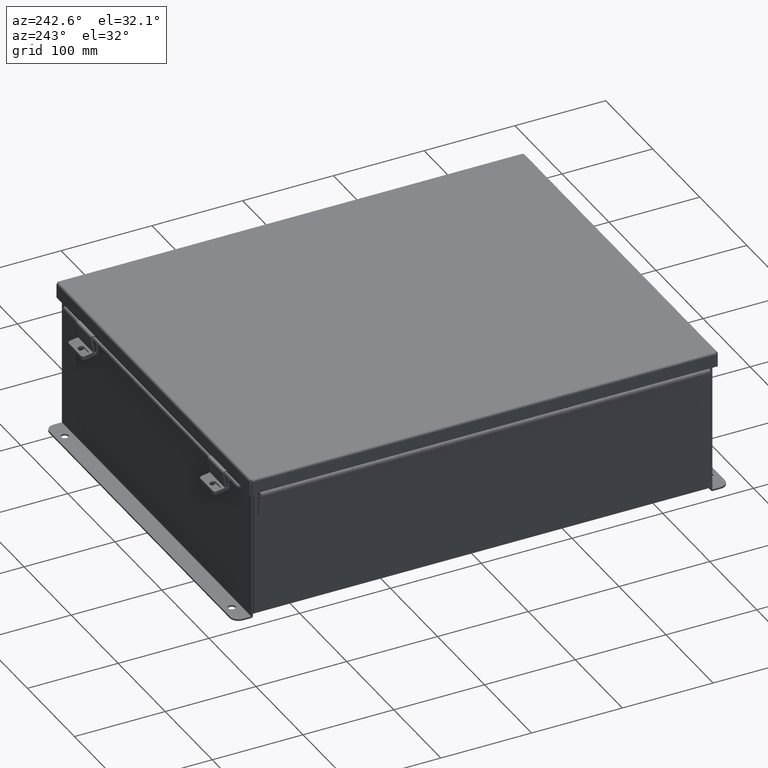
[diagram: clean part render]
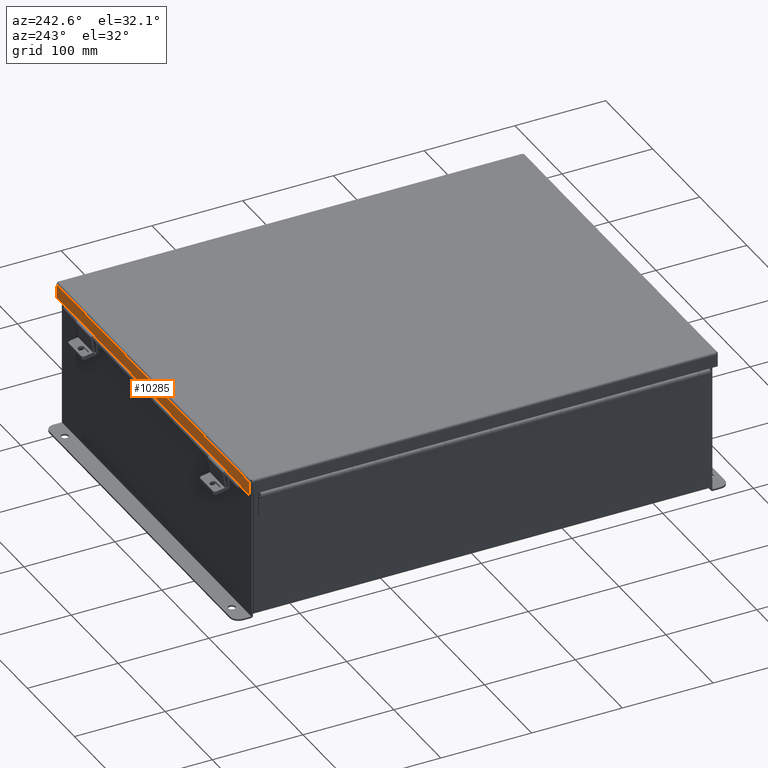
[diagram: same view with one face highlighted and labeled with its STEP entity id]
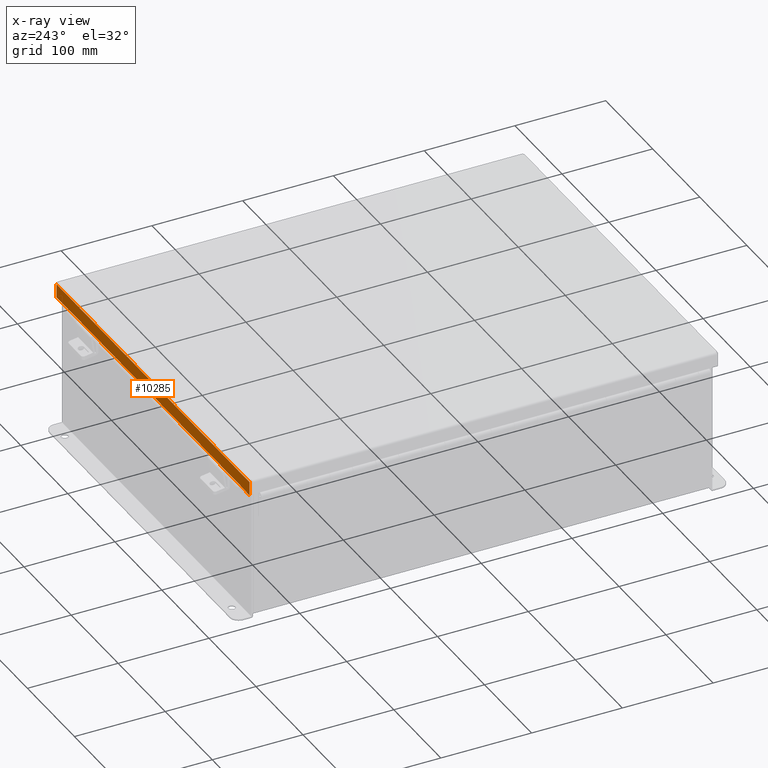
[diagram: x-ray of the same camera — body ghosted, the highlighted face saturated]
A machine part, auxiliary view. The second image highlights one B-rep face of the part: STEP entity #10285.
The next image is the same camera in x-ray: the body ghosted, the highlighted face saturated — about 0% of this face is hidden behind the body in this view.
In plain terms, the highlighted planar face has unit normal (-0, -1, -0).
Its self-contained STEP definition (entity closure, byte-faithful):
#5 = ORIENTED_EDGE ( 'NONE', *, *, #5401, .F. ) ;
#139 = ORIENTED_EDGE ( 'NONE', *, *, #2801, .T. ) ;
#688 = EDGE_CURVE ( 'NONE', #20556, #21527, #14734, .T. ) ;
#698 = DIRECTION ( 'NONE',  ( -1.000000000000000000, -3.191323508412551400E-030, -0.0000000000000000000 ) ) ;
#933 = VECTOR ( 'NONE', #9175, 39.37007874015748100 ) ;
#1218 = CARTESIAN_POINT ( 'NONE',  ( 5.335640612625514100E-018, 10.15625000000000200, 0.6122999999999994000 ) ) ;
#1349 = DIRECTION ( 'NONE',  ( 0.0000000000000000000, -3.569293475308532400E-015, -1.000000000000000000 ) ) ;
#1512 = EDGE_CURVE ( 'NONE', #8308, #2710, #5791, .T. ) ;
#2428 = CARTESIAN_POINT ( 'NONE',  ( 7.324478932188148100, 10.15625000000000400, 0.5967115427318782100 ) ) ;
#2710 = VERTEX_POINT ( 'NONE', #15576 ) ;
#2801 = EDGE_CURVE ( 'NONE', #21527, #12939, #21684, .T. ) ;
#3144 = LINE ( 'NONE', #3263, #21009 ) ;
#3263 = CARTESIAN_POINT ( 'NONE',  ( 5.335640612625514100E-018, 10.15625000000000200, 0.6122999999999994000 ) ) ;
#3641 = DIRECTION ( 'NONE',  ( -3.504962610060362700E-013, 1.873544649899896900E-029, 1.000000000000000000 ) ) ;
#4313 = EDGE_CURVE ( 'NONE', #15788, #21676, #17497, .T. ) ;
#4436 = EDGE_CURVE ( 'NONE', #20556, #8308, #19944, .T. ) ;
#4873 = DIRECTION ( 'NONE',  ( -3.372195227344556400E-030, -1.000000000000000000, 3.569293475308532400E-015 ) ) ;
#4902 = VECTOR ( 'NONE', #698, 39.37007874015748100 ) ;
#5199 = ORIENTED_EDGE ( 'NONE', *, *, #4436, .F. ) ;
#5224 = VECTOR ( 'NONE', #20101, 39.37007874015748100 ) ;
#5401 = EDGE_CURVE ( 'NONE', #20375, #12939, #12150, .T. ) ;
#5791 = LINE ( 'NONE', #13252, #5224 ) ;
#5963 = CARTESIAN_POINT ( 'NONE',  ( -8.074478932188169400, 10.15624999999999800, -3.715313271383398100E-014 ) ) ;
#6250 = CARTESIAN_POINT ( 'NONE',  ( 8.156250000000033800, 10.15624999999999800, 0.01300000000000010700 ) ) ;
#7403 = CARTESIAN_POINT ( 'NONE',  ( 7.324478932188149800, 10.15625000000000400, 0.6122999999999982900 ) ) ;
#7489 = VECTOR ( 'NONE', #3641, 39.37007874015748100 ) ;
#7532 = CARTESIAN_POINT ( 'NONE',  ( 7.324478932188149800, 10.15625000000000400, 0.5967115427318782100 ) ) ;
#8063 = AXIS2_PLACEMENT_3D ( 'NONE', #21913, #4873, #1349 ) ;
#8308 = VERTEX_POINT ( 'NONE', #19312 ) ;
#8316 = VECTOR ( 'NONE', #11216, 39.37007874015748100 ) ;
#8864 = CARTESIAN_POINT ( 'NONE',  ( -8.074478932188169400, 10.15624999999999800, 0.01300000000000010700 ) ) ;
#9175 = DIRECTION ( 'NONE',  ( 0.0000000000000000000, 3.569293475308532400E-015, 1.000000000000000000 ) ) ;
#10285 = ADVANCED_FACE ( 'NONE', ( #15928 ), #13451, .F. ) ;
#10728 = ORIENTED_EDGE ( 'NONE', *, *, #688, .T. ) ;
#11216 = DIRECTION ( 'NONE',  ( 0.0000000000000000000, -1.846427556282924300E-029, -1.000000000000000000 ) ) ;
#12150 = LINE ( 'NONE', #12328, #7489 ) ;
#12286 = CARTESIAN_POINT ( 'NONE',  ( -8.074478932188169400, 10.15625000000000200, 0.6122999999999994000 ) ) ;
#12328 = CARTESIAN_POINT ( 'NONE',  ( -7.324478932188140900, 10.15625000000000400, 0.5967115427318782100 ) ) ;
#12447 = DIRECTION ( 'NONE',  ( 1.000000000000000000, 3.215430816478818200E-030, 4.186740220174584600E-018 ) ) ;
#12546 = ORIENTED_EDGE ( 'NONE', *, *, #1512, .F. ) ;
#12939 = VERTEX_POINT ( 'NONE', #18169 ) ;
#13060 = CARTESIAN_POINT ( 'NONE',  ( 7.324478932188149800, 10.15625000000000200, 0.6122999999999994000 ) ) ;
#13252 = CARTESIAN_POINT ( 'NONE',  ( 8.074478932188169400, 10.15624999999999800, 0.0000000000000000000 ) ) ;
#13451 = PLANE ( 'NONE',  #8063 ) ;
#13603 = LINE ( 'NONE', #2428, #4902 ) ;
#14734 = LINE ( 'NONE', #5963, #933 ) ;
#14803 = VECTOR ( 'NONE', #18830, 39.37007874015748100 ) ;
#15155 = CARTESIAN_POINT ( 'NONE',  ( -7.324478932188140900, 10.15625000000000200, 0.5967115427318782100 ) ) ;
#15576 = CARTESIAN_POINT ( 'NONE',  ( 8.074478932188169400, 10.15625000000000200, 0.6122999999999994000 ) ) ;
#15788 = VERTEX_POINT ( 'NONE', #13060 ) ;
#15928 = FACE_OUTER_BOUND ( 'NONE', #16322, .T. ) ;
#16322 = EDGE_LOOP ( 'NONE', ( #18614, #21846, #12546, #5199, #10728, #139, #5, #17542 ) ) ;
#16404 = EDGE_CURVE ( 'NONE', #21676, #20375, #13603, .T. ) ;
#17056 = VECTOR ( 'NONE', #12447, 39.37007874015748100 ) ;
#17497 = LINE ( 'NONE', #7403, #8316 ) ;
#17542 = ORIENTED_EDGE ( 'NONE', *, *, #16404, .F. ) ;
#18169 = CARTESIAN_POINT ( 'NONE',  ( -7.324478932188148100, 10.15625000000000200, 0.6122999999999994000 ) ) ;
#18614 = ORIENTED_EDGE ( 'NONE', *, *, #4313, .F. ) ;
#18830 = DIRECTION ( 'NONE',  ( 1.000000000000000000, 3.191323508412550700E-030, -0.0000000000000000000 ) ) ;
#19312 = CARTESIAN_POINT ( 'NONE',  ( 8.074478932188169400, 10.15624999999999800, 0.01300000000000010700 ) ) ;
#19944 = LINE ( 'NONE', #6250, #14803 ) ;
#20101 = DIRECTION ( 'NONE',  ( -0.0000000000000000000, 3.569293475308532400E-015, 1.000000000000000000 ) ) ;
#20375 = VERTEX_POINT ( 'NONE', #15155 ) ;
#20556 = VERTEX_POINT ( 'NONE', #8864 ) ;
#20586 = DIRECTION ( 'NONE',  ( 1.000000000000000000, 3.215430816478818200E-030, 4.186740220174584600E-018 ) ) ;
#20834 = EDGE_CURVE ( 'NONE', #15788, #2710, #3144, .T. ) ;
#21009 = VECTOR ( 'NONE', #20586, 39.37007874015748100 ) ;
#21527 = VERTEX_POINT ( 'NONE', #12286 ) ;
#21676 = VERTEX_POINT ( 'NONE', #7532 ) ;
#21684 = LINE ( 'NONE', #1218, #17056 ) ;
#21846 = ORIENTED_EDGE ( 'NONE', *, *, #20834, .T. ) ;
#21913 = CARTESIAN_POINT ( 'NONE',  ( 0.0000000000000000000, 10.15624999999999800, -3.715313271383398100E-014 ) ) ;